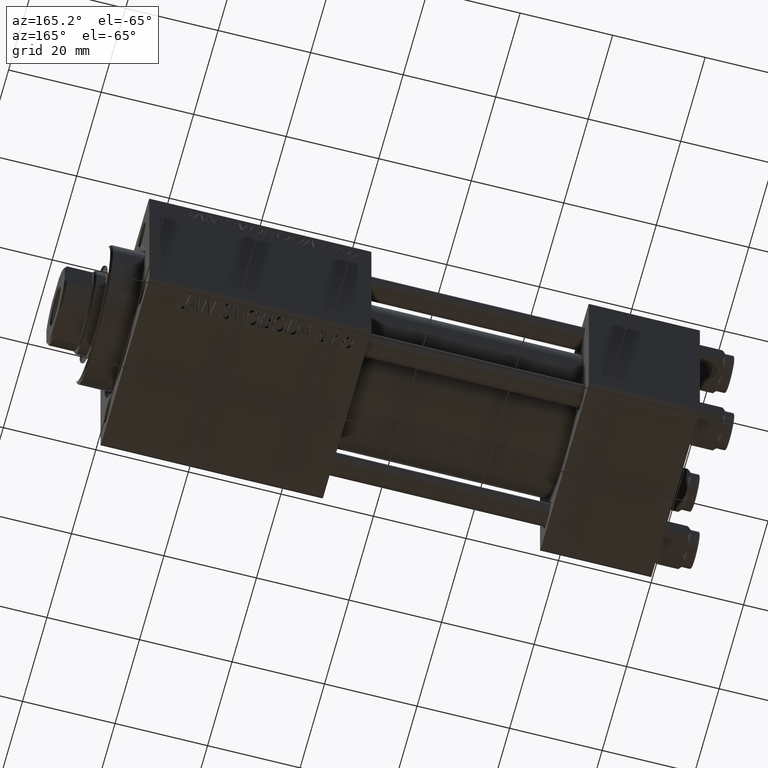
[diagram: clean part render]
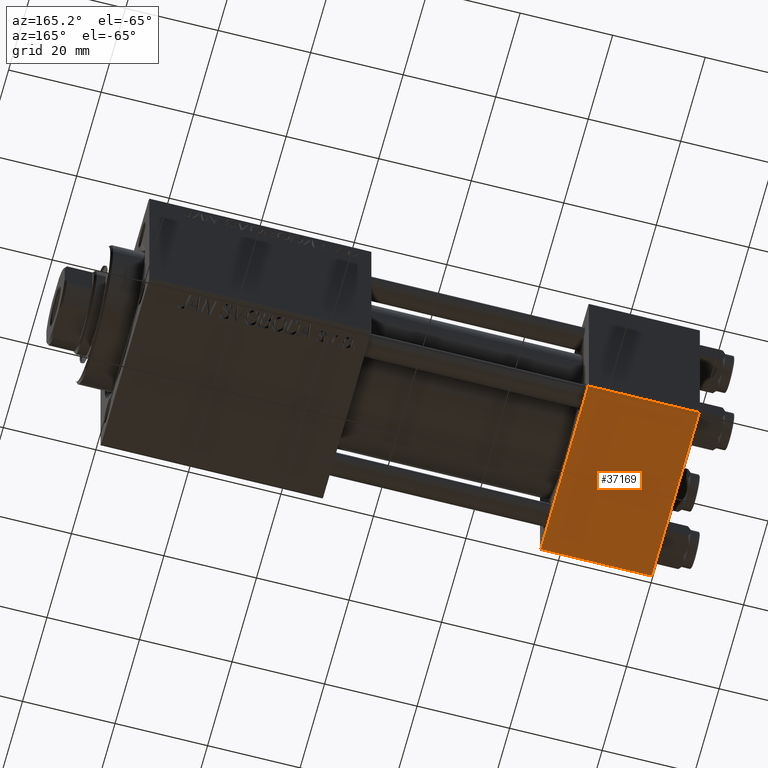
[diagram: same view with one face highlighted and labeled with its STEP entity id]
A machine part, auxiliary view. The second image highlights one B-rep face of the part: STEP entity #37169.
In plain terms, the highlighted planar face has unit normal (0, -0, -1).
Its self-contained STEP definition (entity closure, byte-faithful):
#8 = DIRECTION ( 'NONE',  ( 0.000000000000000000, -1.000000000000000000, 1.734723475976807094E-16 ) ) ;
#1667 = VERTEX_POINT ( 'NONE', #22625 ) ;
#3749 = PLANE ( 'NONE',  #14197 ) ;
#3863 = CARTESIAN_POINT ( 'NONE',  ( 0.000000000000000000, 20.00000000000000000, -20.00000000000000711 ) ) ;
#7056 = FACE_OUTER_BOUND ( 'NONE', #10605, .T. ) ;
#7874 = ORIENTED_EDGE ( 'NONE', *, *, #42123, .F. ) ;
#10605 = EDGE_LOOP ( 'NONE', ( #7874, #40600, #17112, #35927 ) ) ;
#11461 = VECTOR ( 'NONE', #13990, 1000.000000000000000 ) ;
#13199 = VERTEX_POINT ( 'NONE', #50169 ) ;
#13990 = DIRECTION ( 'NONE',  ( 1.000000000000000000, 0.000000000000000000, 0.000000000000000000 ) ) ;
#14197 = AXIS2_PLACEMENT_3D ( 'NONE', #46410, #38289, #45677 ) ;
#14812 = LINE ( 'NONE', #30299, #22654 ) ;
#15741 = EDGE_CURVE ( 'NONE', #1667, #40707, #14812, .T. ) ;
#17112 = ORIENTED_EDGE ( 'NONE', *, *, #49739, .T. ) ;
#17669 = LINE ( 'NONE', #3863, #43631 ) ;
#18816 = CARTESIAN_POINT ( 'NONE',  ( 24.00000000000000000, 19.50000000000000711, -20.00000000000000711 ) ) ;
#19690 = VERTEX_POINT ( 'NONE', #18816 ) ;
#22625 = CARTESIAN_POINT ( 'NONE',  ( 24.00000000000000000, -19.50000000000000711, -20.00000000000000000 ) ) ;
#22654 = VECTOR ( 'NONE', #38150, 1000.000000000000000 ) ;
#25416 = EDGE_CURVE ( 'NONE', #13199, #19690, #41401, .T. ) ;
#25422 = CARTESIAN_POINT ( 'NONE',  ( 24.00000000000000000, 19.50000000000000711, -20.00000000000000711 ) ) ;
#27202 = LINE ( 'NONE', #34809, #42285 ) ;
#30299 = CARTESIAN_POINT ( 'NONE',  ( 0.000000000000000000, -19.50000000000000711, -20.00000000000000000 ) ) ;
#34809 = CARTESIAN_POINT ( 'NONE',  ( 24.00000000000000000, 20.00000000000000000, -20.00000000000000711 ) ) ;
#35927 = ORIENTED_EDGE ( 'NONE', *, *, #15741, .T. ) ;
#36962 = DIRECTION ( 'NONE',  ( 0.000000000000000000, -1.000000000000000000, 1.734723475976807094E-16 ) ) ;
#37169 = ADVANCED_FACE ( 'NONE', ( #7056 ), #3749, .T. ) ;
#38150 = DIRECTION ( 'NONE',  ( -1.000000000000000000, 0.000000000000000000, 0.000000000000000000 ) ) ;
#38289 = DIRECTION ( 'NONE',  ( 0.000000000000000000, -1.734723475976806848E-16, -1.000000000000000000 ) ) ;
#40600 = ORIENTED_EDGE ( 'NONE', *, *, #25416, .T. ) ;
#40707 = VERTEX_POINT ( 'NONE', #46700 ) ;
#41401 = LINE ( 'NONE', #25422, #11461 ) ;
#42123 = EDGE_CURVE ( 'NONE', #13199, #40707, #17669, .T. ) ;
#42285 = VECTOR ( 'NONE', #8, 1000.000000000000000 ) ;
#43631 = VECTOR ( 'NONE', #36962, 1000.000000000000000 ) ;
#45677 = DIRECTION ( 'NONE',  ( 0.000000000000000000, 1.000000000000000000, -1.734723475976806848E-16 ) ) ;
#46410 = CARTESIAN_POINT ( 'NONE',  ( 24.00000000000000000, 20.00000000000000000, -20.00000000000000711 ) ) ;
#46700 = CARTESIAN_POINT ( 'NONE',  ( 0.000000000000000000, -19.50000000000000711, -20.00000000000000000 ) ) ;
#49739 = EDGE_CURVE ( 'NONE', #19690, #1667, #27202, .T. ) ;
#50169 = CARTESIAN_POINT ( 'NONE',  ( 0.000000000000000000, 19.50000000000000711, -20.00000000000000711 ) ) ;